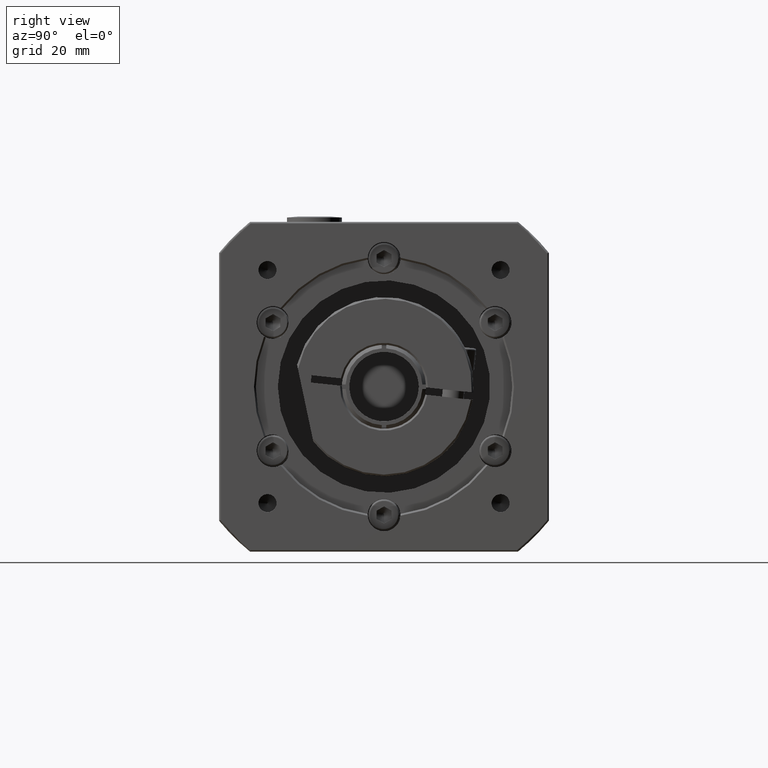
[diagram: clean part render]
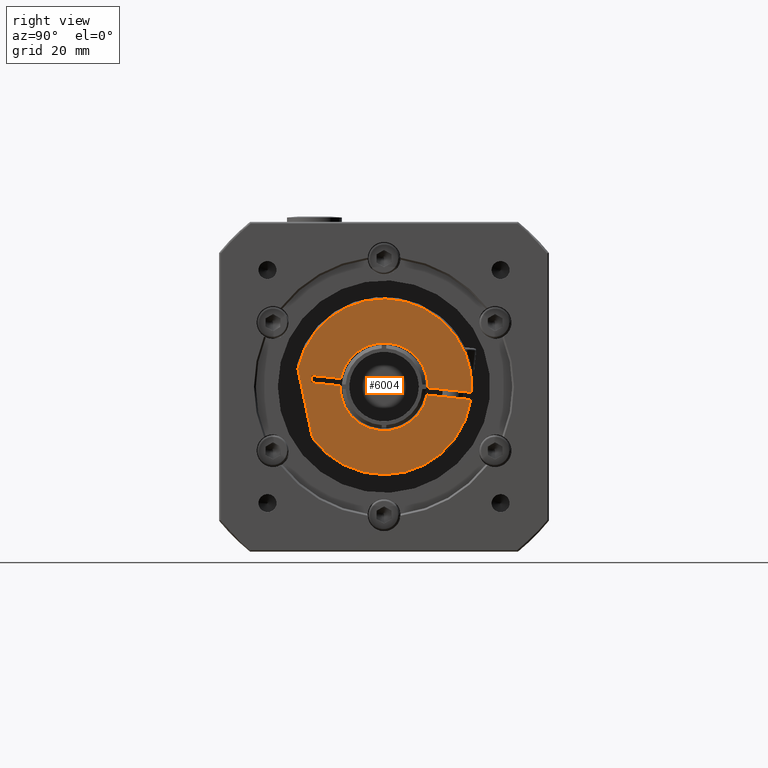
[diagram: same view with one face highlighted and labeled with its STEP entity id]
A machine part, right view. The second image highlights one B-rep face of the part: STEP entity #6004.
In plain terms, the highlighted planar face has unit normal (1, -0, -0).
Its self-contained STEP definition (entity closure, byte-faithful):
#406=LINE('',#10867,#673);
#407=LINE('',#10872,#674);
#408=LINE('',#10876,#675);
#409=LINE('',#10878,#676);
#410=LINE('',#10880,#677);
#411=LINE('',#10884,#678);
#673=VECTOR('',#8454,19.1833260932509);
#674=VECTOR('',#8459,12.0208968734622);
#675=VECTOR('',#8462,8.0417392568986);
#676=VECTOR('',#8463,2.);
#677=VECTOR('',#8464,8.0417392568986);
#678=VECTOR('',#8467,12.0208968734622);
#958=PLANE('',#6749);
#1520=FACE_OUTER_BOUND('',#2089,.T.);
#2089=EDGE_LOOP('',(#5128,#5129,#5130,#5131,#5132,#5133,#5134,#5135,#5136,
#5137));
#2442=CIRCLE('',#6750,24.);
#2443=CIRCLE('',#6751,12.);
#2444=CIRCLE('',#6752,12.);
#2445=CIRCLE('',#6753,24.);
#2965=VERTEX_POINT('',#10845);
#2971=VERTEX_POINT('',#10863);
#2972=VERTEX_POINT('',#10869);
#2973=VERTEX_POINT('',#10871);
#2974=VERTEX_POINT('',#10873);
#2975=VERTEX_POINT('',#10875);
#2976=VERTEX_POINT('',#10877);
#2977=VERTEX_POINT('',#10879);
#2978=VERTEX_POINT('',#10881);
#2979=VERTEX_POINT('',#10883);
#3702=EDGE_CURVE('',#2965,#2971,#406,.T.);
#3703=EDGE_CURVE('',#2972,#2971,#2442,.T.);
#3704=EDGE_CURVE('',#2972,#2973,#407,.T.);
#3705=EDGE_CURVE('',#2974,#2973,#2443,.T.);
#3706=EDGE_CURVE('',#2974,#2975,#408,.T.);
#3707=EDGE_CURVE('',#2975,#2976,#409,.T.);
#3708=EDGE_CURVE('',#2976,#2977,#410,.T.);
#3709=EDGE_CURVE('',#2978,#2977,#2444,.T.);
#3710=EDGE_CURVE('',#2978,#2979,#411,.T.);
#3711=EDGE_CURVE('',#2965,#2979,#2445,.T.);
#5128=ORIENTED_EDGE('',*,*,#3702,.T.);
#5129=ORIENTED_EDGE('',*,*,#3703,.F.);
#5130=ORIENTED_EDGE('',*,*,#3704,.T.);
#5131=ORIENTED_EDGE('',*,*,#3705,.F.);
#5132=ORIENTED_EDGE('',*,*,#3706,.T.);
#5133=ORIENTED_EDGE('',*,*,#3707,.T.);
#5134=ORIENTED_EDGE('',*,*,#3708,.T.);
#5135=ORIENTED_EDGE('',*,*,#3709,.F.);
#5136=ORIENTED_EDGE('',*,*,#3710,.T.);
#5137=ORIENTED_EDGE('',*,*,#3711,.F.);
#6004=ADVANCED_FACE('',(#1520),#958,.T.);
#6749=AXIS2_PLACEMENT_3D('',#10868,#8455,#8456);
#6750=AXIS2_PLACEMENT_3D('',#10870,#8457,#8458);
#6751=AXIS2_PLACEMENT_3D('',#10874,#8460,#8461);
#6752=AXIS2_PLACEMENT_3D('',#10882,#8465,#8466);
#6753=AXIS2_PLACEMENT_3D('',#10885,#8468,#8469);
#8454=DIRECTION('',(-3.91604664785293E-15,0.206829132704469,-0.978377079588804));
#8455=DIRECTION('center_axis',(1.,-2.99211092388074E-15,-4.6351273448686E-15));
#8456=DIRECTION('ref_axis',(-4.9737991503207E-15,-0.105628950081611,-0.994405613874266));
#8457=DIRECTION('center_axis',(-1.,2.99211092388074E-15,4.6351273448686E-15));
#8458=DIRECTION('ref_axis',(-2.48576826510849E-15,-0.994405613874266,0.105628950081611));
#8459=DIRECTION('',(-2.48576826510849E-15,-0.994405613874266,0.105628950081611));
#8460=DIRECTION('center_axis',(1.,-2.99211092388074E-15,-4.6351273448686E-15));
#8461=DIRECTION('ref_axis',(-2.48576826510849E-15,-0.994405613874266,0.105628950081611));
#8462=DIRECTION('',(-2.48576826510849E-15,-0.994405613874266,0.105628950081611));
#8463=DIRECTION('',(4.9252501881767E-15,0.105628950081611,0.994405613874266));
#8464=DIRECTION('',(2.48576826510849E-15,0.994405613874266,-0.105628950081611));
#8465=DIRECTION('center_axis',(1.,-2.99211092388074E-15,-4.6351273448686E-15));
#8466=DIRECTION('ref_axis',(-2.48576826510849E-15,-0.994405613874266,0.105628950081611));
#8467=DIRECTION('',(2.48576826510849E-15,0.994405613874267,-0.105628950081611));
#8468=DIRECTION('center_axis',(-1.,2.99211092388074E-15,4.6351273448686E-15));
#8469=DIRECTION('ref_axis',(-2.48576826510849E-15,-0.994405613874266,0.105628950081611));
#10845=CARTESIAN_POINT('',(39.9702896556816,-55.9014586790054,15.6844101152898));
#10863=CARTESIAN_POINT('',(39.9702896556816,-51.9337879807513,-3.08411644462474));
#10867=CARTESIAN_POINT('',(39.9702896556816,-55.032631875611,11.5745430986923));
#10868=CARTESIAN_POINT('Origin',(39.9702896556817,-32.3933275789247,10.8503877548308));
#10869=CARTESIAN_POINT('',(39.9702896556817,-8.65394757911958,7.3230888980775));
#10870=CARTESIAN_POINT('Origin',(39.9702896556817,-32.3933275789247,10.8503877548308));
#10871=CARTESIAN_POINT('',(39.9702896556817,-20.607594913894,8.59284361386063));
#10872=CARTESIAN_POINT('',(39.9702896556817,-8.70419042923416,7.32842585457962));
#10873=CARTESIAN_POINT('',(39.9702896556816,-44.3903181441186,11.1191206680525));
#10874=CARTESIAN_POINT('Origin',(39.9702896556817,-32.3933275789247,10.8503877548308));
#10875=CARTESIAN_POINT('',(39.9702896556816,-52.3870688064916,11.9685611425888));
#10876=CARTESIAN_POINT('',(39.9702896556817,-8.70419042923416,7.32842585457962));
#10877=CARTESIAN_POINT('',(39.9702896556816,-52.1758109063284,13.9573723703373));
#10878=CARTESIAN_POINT('',(39.9702896556816,-52.3342543314508,12.4657639495259));
#10879=CARTESIAN_POINT('',(39.9702896556817,-44.1790602439554,13.1079318958011));
#10880=CARTESIAN_POINT('',(39.9702896556817,-42.2317547675857,12.9010828695212));
#10881=CARTESIAN_POINT('',(39.9702896556817,-20.3963370137308,10.5816548416092));
#10882=CARTESIAN_POINT('Origin',(39.9702896556817,-32.3933275789247,10.8503877548308));
#10883=CARTESIAN_POINT('',(39.9702896556817,-8.44268967895636,9.31190012582604));
#10884=CARTESIAN_POINT('',(39.9702896556817,-42.2317547675857,12.9010828695212));
#10885=CARTESIAN_POINT('Origin',(39.9702896556817,-32.3933275789247,10.8503877548308));